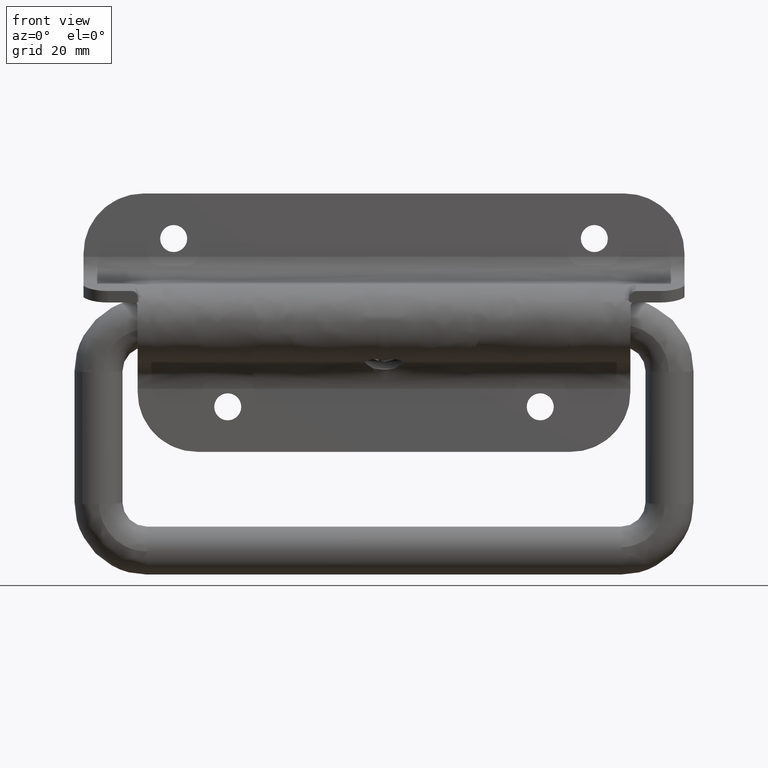
[diagram: clean part render]
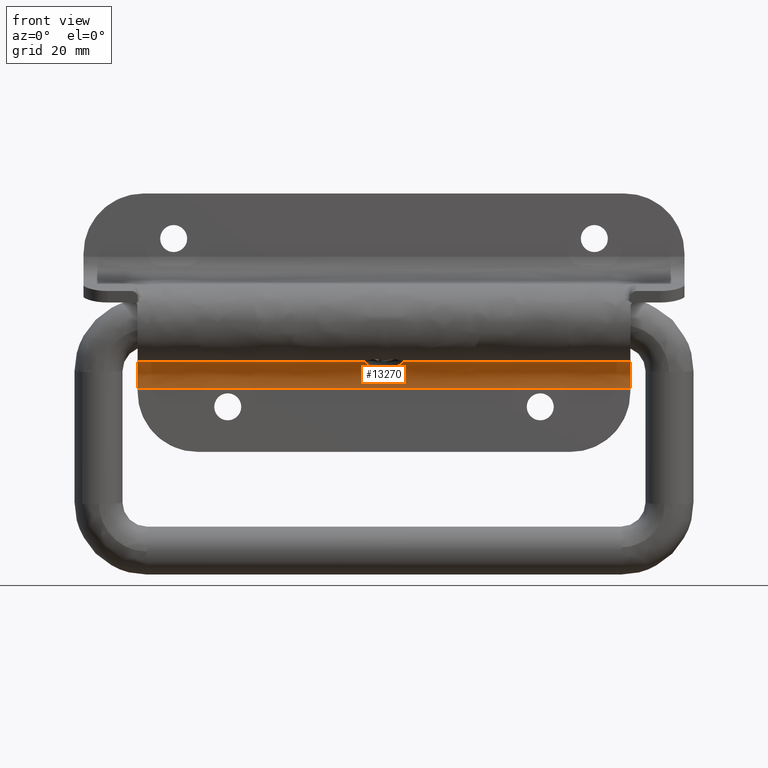
[diagram: same view with one face highlighted and labeled with its STEP entity id]
A machine part, front view. The second image highlights one B-rep face of the part: STEP entity #13270.
In plain terms, the highlighted face is a freeform B-spline surface patch.
Its self-contained STEP definition (entity closure, byte-faithful):
#11026=CARTESIAN_POINT('',(-1.756980332090905,2.983631335975245,-7.631329037886521));
#11027=VERTEX_POINT('',#11026);
#11028=CARTESIAN_POINT('',(1.756980332090905,2.983631335975245,-7.631329037886521));
#11029=VERTEX_POINT('',#11028);
#11040=CARTESIAN_POINT('',(1.756980332090905,2.983631335975245,-7.631329037886521));
#11041=CARTESIAN_POINT('',(1.146969261260170,3.094225579029504,-7.734074536563006));
#11042=CARTESIAN_POINT('',(-0.038053903745540,3.192957304266530,-7.825799386469475));
#11043=CARTESIAN_POINT('',(-1.218724479032646,3.081167859556987,-7.721943508204475));
#11044=CARTESIAN_POINT('',(-1.756980332090905,2.983631335975245,-7.631329037886521));
#11045=B_SPLINE_CURVE_WITH_KNOTS('',3,(#11040,#11041,#11042,#11043,#11044),.UNSPECIFIED.,.F.,.U.,(4,1,4),(7.322120E-009,1.885195013214030,3.548608035516659),.UNSPECIFIED.);
#11046=EDGE_CURVE('',#11029,#11027,#11045,.T.);
#11077=CARTESIAN_POINT('',(3.232912779721450,7.959941E-016,-6.500000000000000));
#11078=VERTEX_POINT('',#11077);
#11114=CARTESIAN_POINT('',(-3.232912779721450,7.959941E-016,-6.500000000000000));
#11115=VERTEX_POINT('',#11114);
#11145=CARTESIAN_POINT('',(-1.756980332090905,2.983631335975245,-7.631329037886521));
#11146=CARTESIAN_POINT('',(-1.808761569253987,2.952525583158007,-7.603780060212644));
#11147=CARTESIAN_POINT('',(-1.859543723362118,2.920027090254767,-7.575761322113133));
#11148=CARTESIAN_POINT('',(-2.085470476753631,2.766158512389127,-7.447123587784936));
#11149=CARTESIAN_POINT('',(-2.246881279541652,2.630370623512466,-7.344207584429977));
#11150=CARTESIAN_POINT('',(-2.431493253466519,2.438973866746972,-7.217998900483227));
#11151=CARTESIAN_POINT('',(-2.467543157535463,2.399598379006848,-7.192873154904089));
#11152=CARTESIAN_POINT('',(-2.537880380837867,2.318545332744728,-7.142976181446175));
#11153=CARTESIAN_POINT('',(-2.572159274165510,2.276860917972843,-7.118207865567151));
#11154=CARTESIAN_POINT('',(-2.671202658370314,2.149651076585425,-7.045437762888773));
#11155=CARTESIAN_POINT('',(-2.732588655404877,2.061527797157047,-6.998688304485008));
#11156=CARTESIAN_POINT('',(-2.902939444163339,1.786757950712462,-6.864904430308871));
#11157=CARTESIAN_POINT('',(-2.998319090699435,1.589869336065624,-6.784251668807630));
#11158=CARTESIAN_POINT('',(-3.092139924795526,1.323196548501413,-6.698570785085511));
#11159=CARTESIAN_POINT('',(-3.109671504190443,1.268608229897049,-6.682142357748853));
#11160=CARTESIAN_POINT('',(-3.141605074612603,1.158683981817727,-6.651355157998430));
#11161=CARTESIAN_POINT('',(-3.156044793763055,1.103280910683044,-6.636965382284751));
#11162=CARTESIAN_POINT('',(-3.194799762614641,0.935740304112654,-6.596866866343487));
#11163=CARTESIAN_POINT('',(-3.214564810533946,0.822274641704941,-6.574223789597038));
#11164=CARTESIAN_POINT('',(-3.234923377142292,0.649327871854324,-6.546711228632880));
#11165=CARTESIAN_POINT('',(-3.240157960427957,0.591220111781330,-6.538616919300657));
#11166=CARTESIAN_POINT('',(-3.247449684384325,0.474061447244227,-6.524651326556700));
#11167=CARTESIAN_POINT('',(-3.249506333636929,0.414854068602174,-6.518768803607816));
#11168=CARTESIAN_POINT('',(-3.250751303490846,0.236986616171784,-6.504670636626838));
#11169=CARTESIAN_POINT('',(-3.245067089007183,0.118464724382498,-6.500000030779267));
#11170=CARTESIAN_POINT('',(-3.232912779721450,7.959941E-016,-6.500000000000000));
#11171=B_SPLINE_CURVE_WITH_KNOTS('',3,(#11145,#11146,#11147,#11148,#11149,#11150,#11151,#11152,#11153,#11154,#11155,#11156,#11157,#11158,#11159,#11160,#11161,#11162,#11163,#11164,#11165,#11166,#11167,#11168,#11169,#11170),.UNSPECIFIED.,.F.,.U.,(4,2,2,2,2,2,2,2,2,2,2,2,4),(0.669968255952884,0.687500000000000,0.750000000000000,0.765625000000000,0.781250000000000,0.812500000000000,0.875000000000000,0.890625000000000,0.906250000000000,0.937500000000000,0.953125000000000,0.968750000000000,1.0),.UNSPECIFIED.);
#11172=EDGE_CURVE('',#11027,#11115,#11171,.T.);
#11175=CARTESIAN_POINT('',(3.232912779721450,7.959941E-016,-6.500000000000000));
#11176=CARTESIAN_POINT('',(3.257184750768563,0.236576355073503,-6.499999836287224));
#11177=CARTESIAN_POINT('',(3.255556565543335,0.470201340772960,-6.518538649836736));
#11178=CARTESIAN_POINT('',(3.222155562094915,0.758672159926466,-6.564029735294817));
#11179=CARTESIAN_POINT('',(3.213889474184917,0.816186917063345,-6.574250418977263));
#11180=CARTESIAN_POINT('',(3.194139976360233,0.930855355135199,-6.596940921225772));
#11181=CARTESIAN_POINT('',(3.182662230014888,0.987896444196990,-6.609398033918836));
#11182=CARTESIAN_POINT('',(3.143972589001580,1.156032846715143,-6.649497387071227));
#11183=CARTESIAN_POINT('',(3.112387702782146,1.264966979178609,-6.680017120348911));
#11184=CARTESIAN_POINT('',(3.038252488422632,1.476981290642228,-6.747833451232872));
#11185=CARTESIAN_POINT('',(2.995700136365759,1.580059844675054,-6.785133041535772));
#11186=CARTESIAN_POINT('',(2.923771982982087,1.730480858211699,-6.845681214275103));
#11187=CARTESIAN_POINT('',(2.898382130017558,1.780017326558555,-6.866678849414758));
#11188=CARTESIAN_POINT('',(2.845464669412557,1.876687378220597,-6.909663836223599));
#11189=CARTESIAN_POINT('',(2.817889017303568,1.923936101802070,-6.931693257013467));
#11190=CARTESIAN_POINT('',(2.674589867633154,2.155025822807186,-7.044225357837628));
#11191=CARTESIAN_POINT('',(2.542851095327424,2.323583351489128,-7.141880536982112));
#11192=CARTESIAN_POINT('',(2.245256459034286,2.631963778137994,-7.345291980024026));
#11193=CARTESIAN_POINT('',(2.083497339004595,2.767586289525288,-7.448281564342937));
#11194=CARTESIAN_POINT('',(1.858789052906690,2.920496189648774,-7.576169942560487));
#11195=CARTESIAN_POINT('',(1.808467170138366,2.952705712654166,-7.603938248687912));
#11196=CARTESIAN_POINT('',(1.756980332090905,2.983631335975245,-7.631329037886521));
#11197=B_SPLINE_CURVE_WITH_KNOTS('',3,(#11175,#11176,#11177,#11178,#11179,#11180,#11181,#11182,#11183,#11184,#11185,#11186,#11187,#11188,#11189,#11190,#11191,#11192,#11193,#11194,#11195,#11196),.UNSPECIFIED.,.F.,.U.,(4,2,2,2,2,2,2,2,2,2,4),(0.0,0.062500000000000,0.078125000000000,0.093749999999999,0.124999999999999,0.156249999999999,0.171874999999999,0.187499999999999,0.249999999999999,0.312499999999999,0.330033340400377),.UNSPECIFIED.);
#11198=EDGE_CURVE('',#11078,#11029,#11197,.T.);
#12902=CARTESIAN_POINT('',(41.0,4.500000000000000,-11.0));
#12903=VERTEX_POINT('',#12902);
#12909=CARTESIAN_POINT('',(-41.0,4.500000000000000,-11.0));
#12910=VERTEX_POINT('',#12909);
#12911=CARTESIAN_POINT('',(41.0,4.500000000000000,-11.0));
#12912=CARTESIAN_POINT('',(-41.0,4.500000000000000,-11.0));
#12913=QUASI_UNIFORM_CURVE('',1,(#12911,#12912),.UNSPECIFIED.,.F.,.U.);
#12914=EDGE_CURVE('',#12903,#12910,#12913,.T.);
#13072=CARTESIAN_POINT('',(41.0,2.755364E-016,-6.500000000000000));
#13073=VERTEX_POINT('',#13072);
#13091=CARTESIAN_POINT('',(41.0,4.500000000000000,-11.0));
#13092=CARTESIAN_POINT('',(40.999999999999901,4.500237691365153,-10.521366302543830));
#13093=CARTESIAN_POINT('',(41.000000000000178,4.384385007989138,-9.803633866786925));
#13094=CARTESIAN_POINT('',(40.999999999999872,3.996990934309600,-8.884743798313490));
#13095=CARTESIAN_POINT('',(41.000000000000441,3.497839936542670,-8.106793093702660));
#13096=CARTESIAN_POINT('',(40.999999999999382,2.846369651810075,-7.471159877627240));
#13097=CARTESIAN_POINT('',(41.000000000000838,2.066593253014173,-6.977485232760663));
#13098=CARTESIAN_POINT('',(40.999999999999261,1.178004705348999,-6.609340734588296));
#13099=CARTESIAN_POINT('',(41.000000000000398,0.441805249069445,-6.499799042261952));
#13100=CARTESIAN_POINT('',(41.0,2.755364E-016,-6.500000000000000));
#13101=B_SPLINE_CURVE_WITH_KNOTS('',3,(#13091,#13092,#13093,#13094,#13095,#13096,#13097,#13098,#13099,#13100),.UNSPECIFIED.,.F.,.U.,(4,1,1,1,1,1,1,4),(0.000000139052615,1.435807242779882,2.153724332802518,2.982084615782290,4.196977658585288,4.859671493050367,5.743270309517684,7.068627822949134),.UNSPECIFIED.);
#13102=EDGE_CURVE('',#12903,#13073,#13101,.T.);
#13129=CARTESIAN_POINT('',(-41.0,2.755364E-016,-6.500000000000000));
#13130=VERTEX_POINT('',#13129);
#13185=CARTESIAN_POINT('',(-41.0,4.500000000000000,-11.0));
#13186=CARTESIAN_POINT('',(-40.999999999999901,4.500237691365153,-10.521366302543830));
#13187=CARTESIAN_POINT('',(-41.000000000000178,4.384385007989138,-9.803633866786925));
#13188=CARTESIAN_POINT('',(-40.999999999999872,3.996990934309600,-8.884743798313490));
#13189=CARTESIAN_POINT('',(-41.000000000000441,3.497839936542670,-8.106793093702660));
#13190=CARTESIAN_POINT('',(-40.999999999999382,2.846369651810075,-7.471159877627240));
#13191=CARTESIAN_POINT('',(-41.000000000000838,2.066593253014173,-6.977485232760663));
#13192=CARTESIAN_POINT('',(-40.999999999999261,1.178004705348999,-6.609340734588296));
#13193=CARTESIAN_POINT('',(-41.000000000000398,0.441805249069445,-6.499799042261952));
#13194=CARTESIAN_POINT('',(-41.0,2.755364E-016,-6.500000000000000));
#13195=B_SPLINE_CURVE_WITH_KNOTS('',3,(#13185,#13186,#13187,#13188,#13189,#13190,#13191,#13192,#13193,#13194),.UNSPECIFIED.,.F.,.U.,(4,1,1,1,1,1,1,4),(0.000000139052615,1.435807242779882,2.153724332802518,2.982084615782290,4.196977658585288,4.859671493050367,5.743270309517684,7.068627822949134),.UNSPECIFIED.);
#13196=EDGE_CURVE('',#12910,#13130,#13195,.T.);
#13220=CARTESIAN_POINT('',(41.0,2.755364E-016,-6.500000000000000));
#13221=CARTESIAN_POINT('',(3.232912779721450,7.959941E-016,-6.500000000000000));
#13222=QUASI_UNIFORM_CURVE('',1,(#13220,#13221),.UNSPECIFIED.,.F.,.U.);
#13223=EDGE_CURVE('',#13073,#11078,#13222,.T.);
#13236=CARTESIAN_POINT('',(-3.232912779721450,7.959941E-016,-6.500000000000000));
#13237=CARTESIAN_POINT('',(-41.0,2.755364E-016,-6.500000000000000));
#13238=QUASI_UNIFORM_CURVE('',1,(#13236,#13237),.UNSPECIFIED.,.F.,.U.);
#13239=EDGE_CURVE('',#11115,#13130,#13238,.T.);
#13246=CARTESIAN_POINT('',(43.049999999999997,4.498457962390006,-11.117796267385430));
#13247=CARTESIAN_POINT('',(-43.101250000000000,4.498457962390006,-11.117796267385430));
#13248=CARTESIAN_POINT('',(43.050000000000011,4.628215170748177,-6.162568397503762));
#13249=CARTESIAN_POINT('',(-43.101250000000000,4.628215170748177,-6.162568397503762));
#13250=CARTESIAN_POINT('',(43.050000000000004,-0.316440340316929,-6.511139842786359));
#13251=CARTESIAN_POINT('',(-43.101250000000007,-0.316440340316929,-6.511139842786359));
#13259=(BOUNDED_SURFACE()B_SPLINE_SURFACE(1,2,((#13246,#13248,#13250),(#13247,#13249,#13251)),.UNSPECIFIED.,.F.,.F.,.U.)B_SPLINE_SURFACE_WITH_KNOTS((2,2),(3,3),(0.0,86.151250000000033),(0.0,7.970140548397636),.UNSPECIFIED.)GEOMETRIC_REPRESENTATION_ITEM()RATIONAL_B_SPLINE_SURFACE(((1.0,0.670944223154768,0.996392648609106),(1.0,0.670944223154768,0.996392648609106)))REPRESENTATION_ITEM('')SURFACE());
#13260=ORIENTED_EDGE('',*,*,#13223,.T.);
#13261=ORIENTED_EDGE('',*,*,#11198,.T.);
#13262=ORIENTED_EDGE('',*,*,#11046,.T.);
#13263=ORIENTED_EDGE('',*,*,#11172,.T.);
#13264=ORIENTED_EDGE('',*,*,#13239,.T.);
#13265=ORIENTED_EDGE('',*,*,#13196,.F.);
#13266=ORIENTED_EDGE('',*,*,#12914,.F.);
#13267=ORIENTED_EDGE('',*,*,#13102,.T.);
#13268=EDGE_LOOP('',(#13260,#13261,#13262,#13263,#13264,#13265,#13266,#13267));
#13269=FACE_OUTER_BOUND('',#13268,.T.);
#13270=ADVANCED_FACE('',(#13269),#13259,.F.);